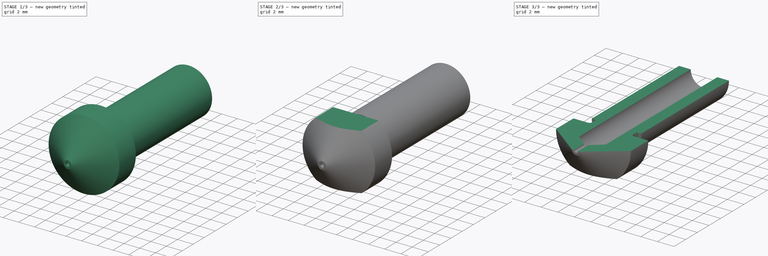
[diagram: build sequence overview — one tinted view per stage of 3, left to right]
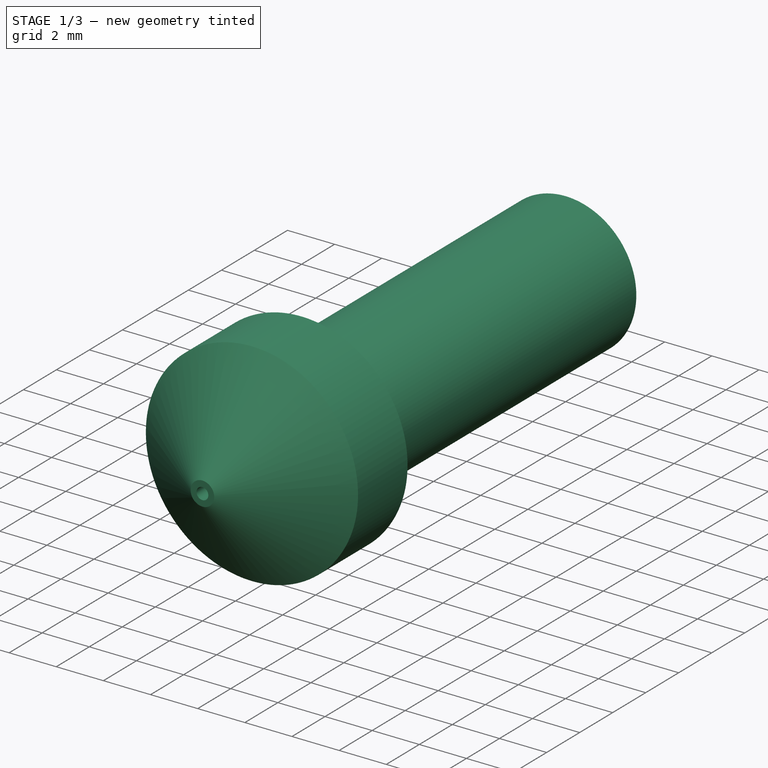
[diagram: stage 1 of 3 — iso view after this stage's code; geometry added in this stage tinted green]
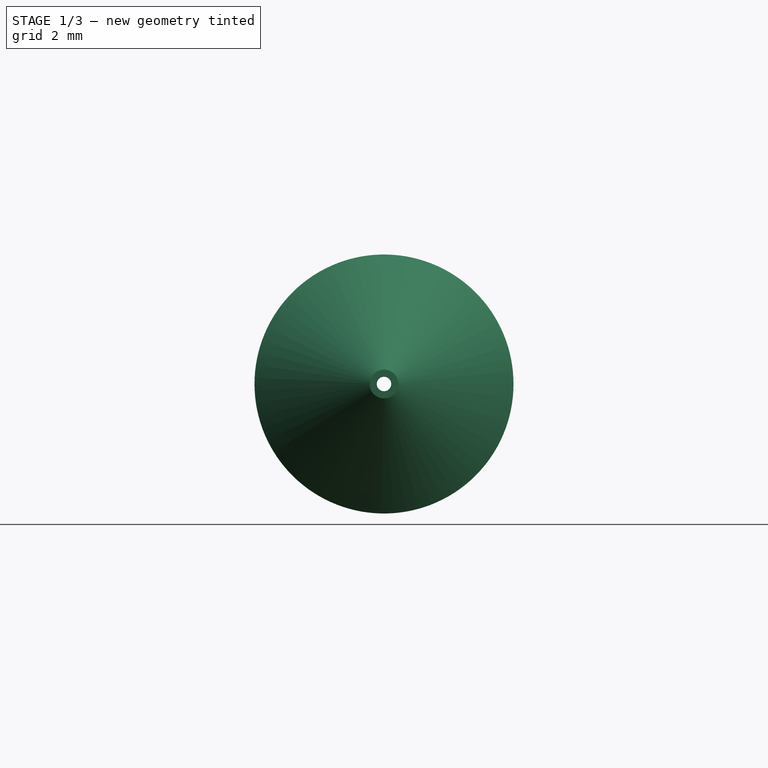
[diagram: stage 1 of 3 — front view after this stage's code; geometry added in this stage tinted green]
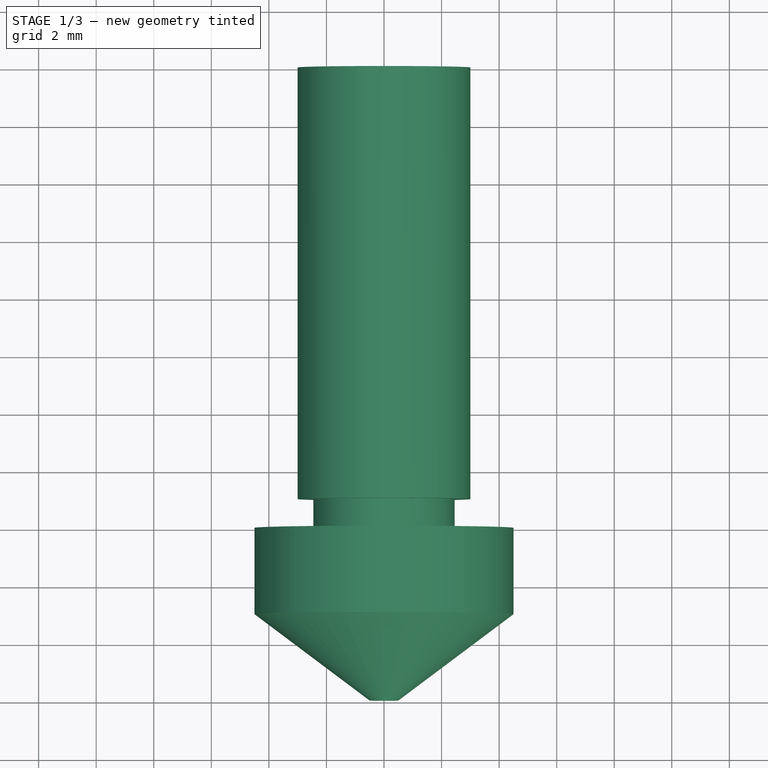
[diagram: stage 1 of 3 — top view after this stage's code; geometry added in this stage tinted green]
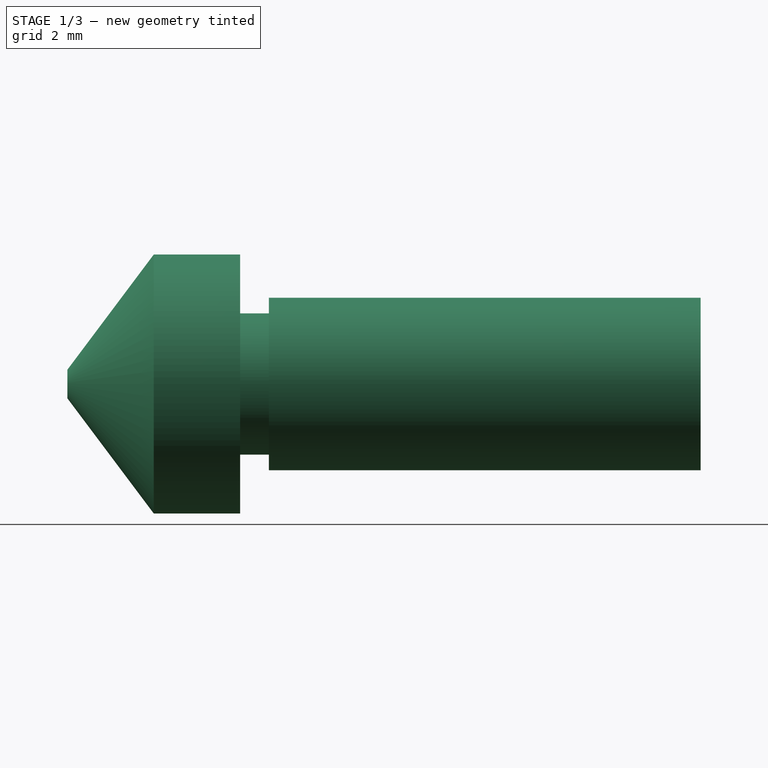
[diagram: stage 1 of 3 — right view after this stage's code; geometry added in this stage tinted green]
FCSTD DOCUMENT  (FreeCAD 0.16R4695 (Git))
Label: extended_hex_nozzle_0.15_drawing
License: All rights reserved
LicenseURL: http://en.wikipedia.org/wiki/All_rights_reserved
objects: Drawing::FeatureView×13, Sketcher::SketchObject×4, Drawing::FeatureViewPart×4, PartDesign::Pocket×3, PartDesign::Revolution×1, PartDesign::Fillet×1, Drawing::FeaturePage×1
note: 13 computed .brp shape members not serialized (recipe doc carries the construction recipe); baked Part::Feature solids carry a one-line shape summary decoded from their .brp

FEATURE [Sketcher::SketchObject] Sketch
  sketch-geometry (13):
    g0: LineSegment StartX=0 StartY=0 StartZ=0 EndX=0.5 EndY=0 EndZ=0
    g1: LineSegment StartX=0.5 StartY=0 StartZ=0 EndX=4.5 EndY=3 EndZ=0
    g2: LineSegment StartX=4.5 StartY=3 StartZ=0 EndX=4.5 EndY=6 EndZ=0
    g3: LineSegment StartX=4.5 StartY=6 StartZ=0 EndX=3 EndY=6 EndZ=0
    g4: LineSegment StartX=3 StartY=7 StartZ=0 EndX=3 EndY=22 EndZ=0
    g5: LineSegment StartX=3 StartY=22 StartZ=0 EndX=1.6 EndY=22 EndZ=0
    g6: LineSegment StartX=1.6 StartY=22 StartZ=0 EndX=1.6 EndY=2.84256 EndZ=0
    g7: LineSegment StartX=1.6 StartY=2.84256 StartZ=0 EndX=0 EndY=1.5 EndZ=0
    g8: LineSegment StartX=0 StartY=1.5 StartZ=0 EndX=0 EndY=0 EndZ=0
    g9: LineSegment StartX=3 StartY=6 StartZ=0 EndX=2.454 EndY=6 EndZ=0
    g10: LineSegment StartX=2.454 StartY=6 StartZ=0 EndX=2.454 EndY=7 EndZ=0
    g11: LineSegment StartX=2.454 StartY=7 StartZ=0 EndX=3 EndY=7 EndZ=0
    g12: LineSegment [constr] StartX=3 StartY=7 StartZ=0 EndX=3 EndY=6 EndZ=0
  constraints (38):
    c: Coincident(g-1,g0)
    c: PointOnObject(g0,g-1)
    c: Coincident(g0,g1)
    c: Coincident(g1,g2)
    c: Vertical(g2)
    c: Coincident(g2,g3)
    c: Horizontal(g3)
    c: Vertical(g4)
    c: Coincident(g4,g5)
    c: Horizontal(g5)
    c: Coincident(g5,g6)
    c: Vertical(g6)
    c: Coincident(g6,g7)
    c: Coincident(g7,g8)
    c: Coincident(g8,g0)
    c: Vertical(g8)
    c: DistanceY(g0,g1) = 3
    c: DistanceY(g2,g1) = -3
    c: DistanceY(g-1,g4) = 22
    c: Angle(g0,g7) = 0.698132
    c: DistanceY(g-1,g7) = 1.5
    c: DistanceX(g0) = 0.5
    c: DistanceX(g-1,g1) = 4.5
    c: DistanceX(g-1,g4) = 3
    c: DistanceX(g-1,g5) = 1.6
    c: Coincident(g9,g10)
    c: Coincident(g10,g11)
    c: Coincident(g11,g12)
    c: Coincident(g12,g9)
    c: Horizontal(g9)
    c: Horizontal(g11)
    c: Vertical(g10)
    c: Vertical(g12)
    c: Coincident(g9,g3)
    c: DistanceY(g11,g3) = -1
    c: DistanceX(g-1,g9) = 2.454
    c: PointOnObject(g4,g11)
    c: Coincident(g11,g4)
FEATURE [PartDesign::Revolution] Revolution
  Angle = 360
  Axis = (0,1,0)
  Base = (0,0,0)
  ReferenceAxis = -> Sketch [V_Axis]
  Reversed = true
  Sketch = -> Sketch
FEATURE [Sketcher::SketchObject] Sketch001
  Placement = pos=(0,0,0) rot=(1,0,0;1.5708rad)
  Support = -> Revolution [Face1]
  sketch-geometry (1):
    g0: Circle CenterX=0 CenterY=0 CenterZ=0 NormalX=0 NormalY=0 NormalZ=1 Radius=0.25
  constraints (2):
    c: Coincident(g0,g-1)
    c: Radius(g0) = 0.25
FEATURE [PartDesign::Pocket] Pocket
  Length = 5
  Sketch = -> Sketch001
  Type = 0
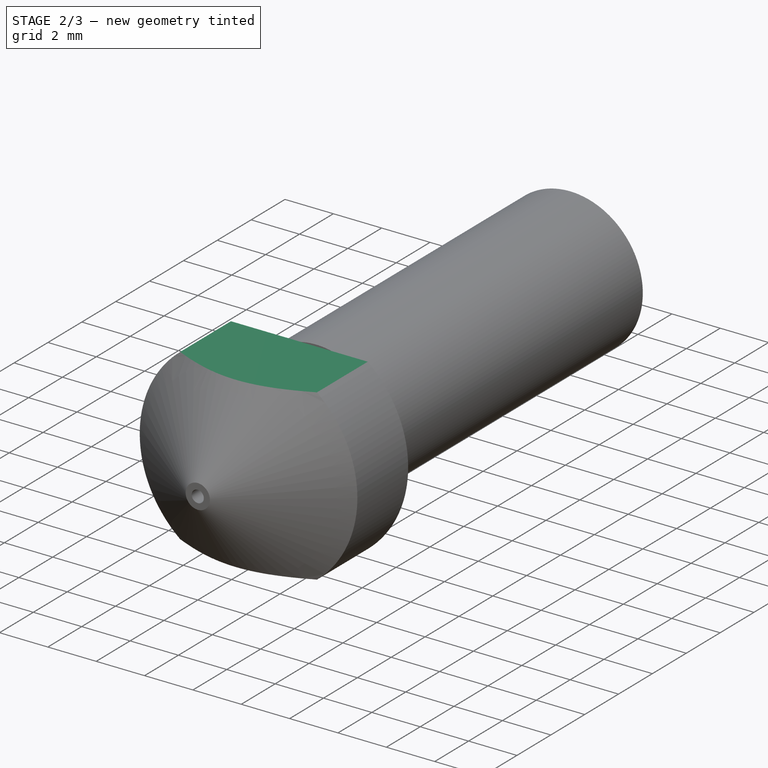
[diagram: stage 2 of 3 — iso view after this stage's code; geometry added in this stage tinted green]
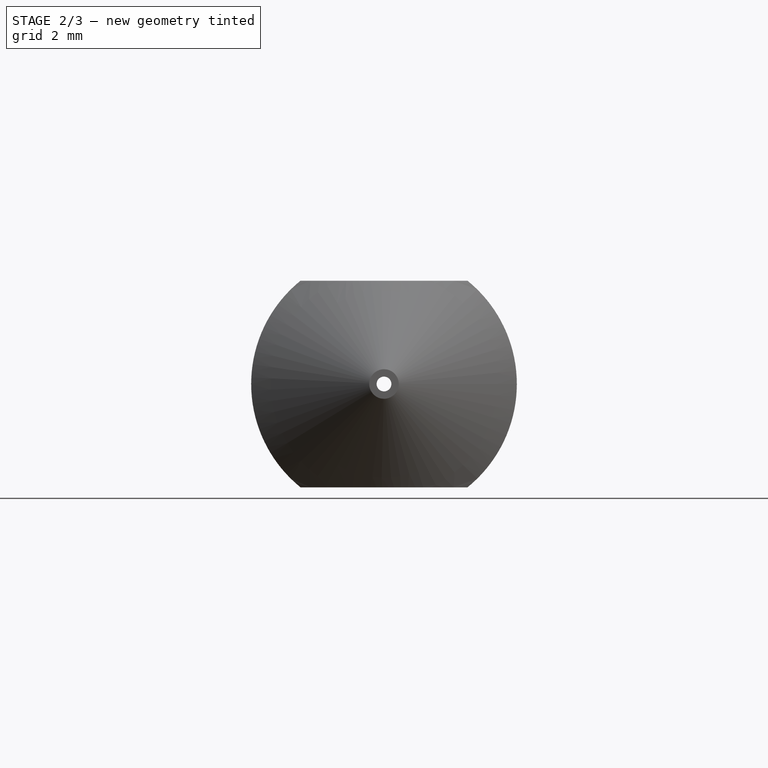
[diagram: stage 2 of 3 — front view after this stage's code; geometry added in this stage tinted green]
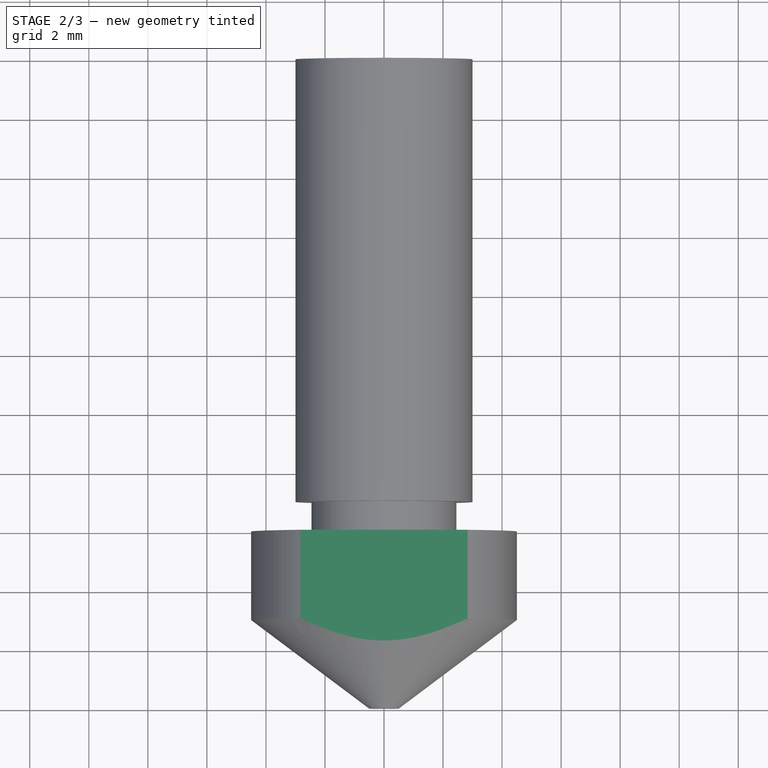
[diagram: stage 2 of 3 — top view after this stage's code; geometry added in this stage tinted green]
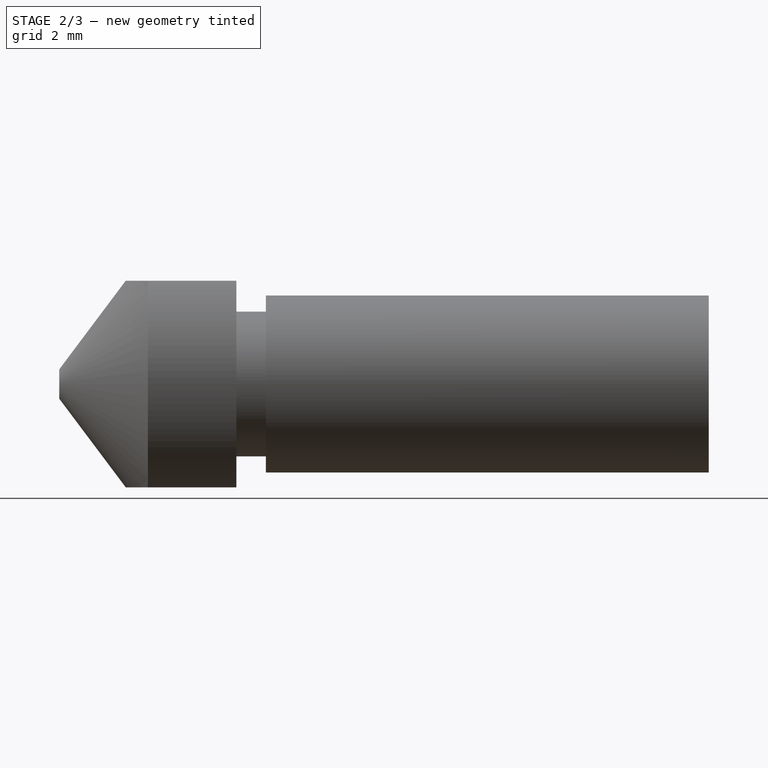
[diagram: stage 2 of 3 — right view after this stage's code; geometry added in this stage tinted green]
FEATURE [Sketcher::SketchObject] Sketch002
  Placement = pos=(0,0,0) rot=(1,0,0;1.5708rad)
  Support = -> Pocket [Face1]
  sketch-geometry (8):
    g0: LineSegment StartX=-5.41894 StartY=5.5961 StartZ=0 EndX=4.58106 EndY=5.5961 EndZ=0
    g1: LineSegment StartX=4.58106 StartY=5.5961 StartZ=0 EndX=4.58106 EndY=3.5 EndZ=0
    g2: LineSegment StartX=4.58106 StartY=3.5 StartZ=0 EndX=-5.41894 EndY=3.5 EndZ=0
    g3: LineSegment StartX=-5.41894 StartY=3.5 StartZ=0 EndX=-5.41894 EndY=5.5961 EndZ=0
    g4: LineSegment StartX=-5.45643 StartY=-5.80451 StartZ=0 EndX=4.54357 EndY=-5.80451 EndZ=0
    g5: LineSegment StartX=4.54357 StartY=-5.80451 StartZ=0 EndX=4.54357 EndY=-3.5 EndZ=0
    g6: LineSegment StartX=4.54357 StartY=-3.5 StartZ=0 EndX=-5.45643 EndY=-3.5 EndZ=0
    g7: LineSegment StartX=-5.45643 StartY=-3.5 StartZ=0 EndX=-5.45643 EndY=-5.80451 EndZ=0
  constraints (24):
    c: Coincident(g0,g1)
    c: Coincident(g1,g2)
    c: Coincident(g2,g3)
    c: Coincident(g3,g0)
    c: Horizontal(g0)
    c: Horizontal(g2)
    c: Vertical(g1)
    c: Vertical(g3)
    c: Coincident(g4,g5)
    c: Coincident(g5,g6)
    c: Coincident(g6,g7)
    c: Coincident(g7,g4)
    c: Horizontal(g4)
    c: Horizontal(g6)
    c: Vertical(g5)
    c: Vertical(g7)
    c: DistanceY(g6,g2) = 7
    c: DistanceY(g-1,g2) = 3.5
    c: DistanceX(g4) = 4.54357
    c: DistanceY(g4) = -5.80451
    c: DistanceX(g0) = -5.41894
    c: DistanceY(g0) = 5.5961
    c: Equal(g0,g4)
    c: DistanceX(g0) = 10
FEATURE [PartDesign::Pocket] Pocket001
  Length = 5
  Sketch = -> Sketch002
  Type = 1
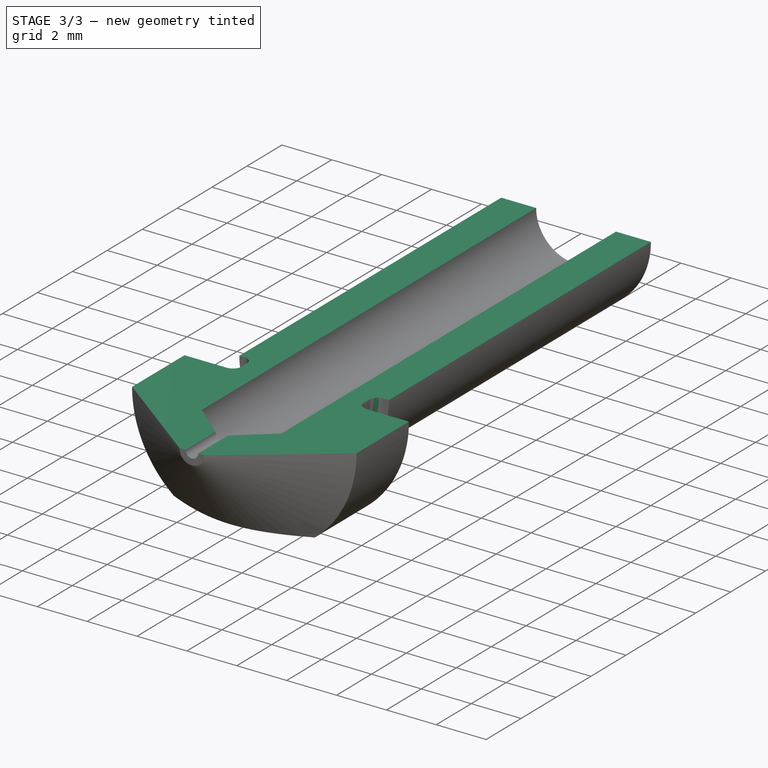
[diagram: stage 3 of 3 — iso view after this stage's code; geometry added in this stage tinted green]
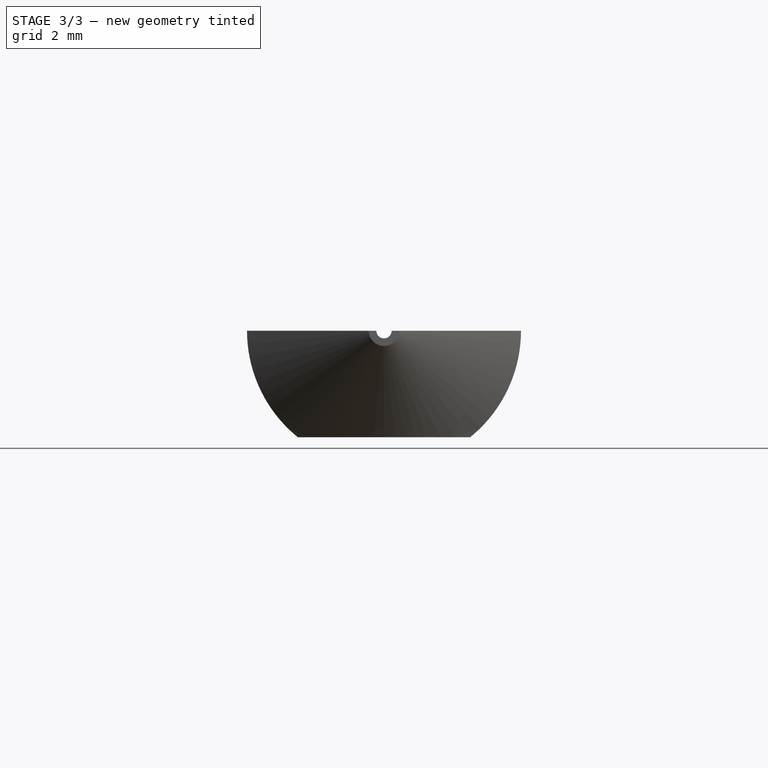
[diagram: stage 3 of 3 — front view after this stage's code; geometry added in this stage tinted green]
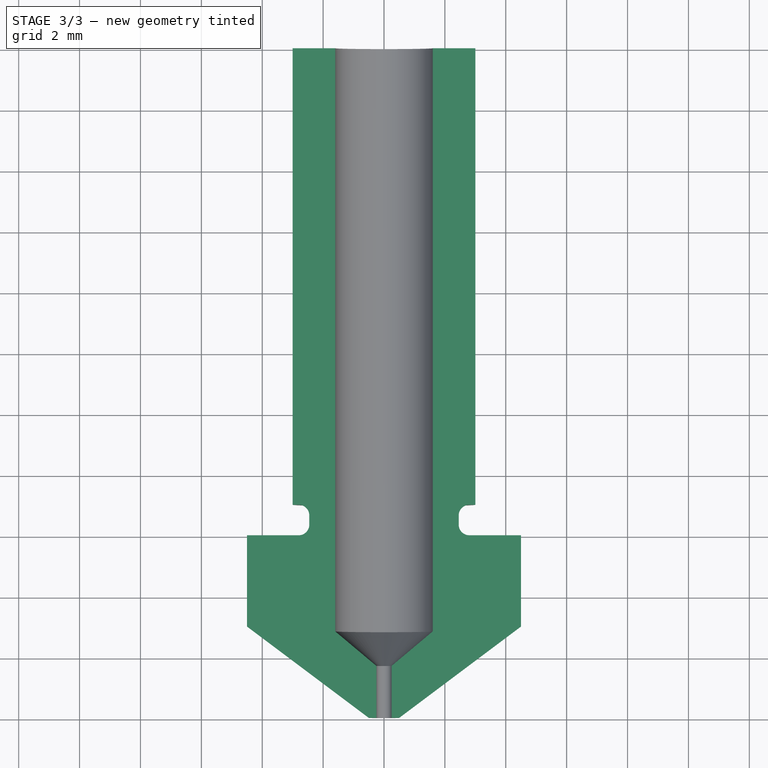
[diagram: stage 3 of 3 — top view after this stage's code; geometry added in this stage tinted green]
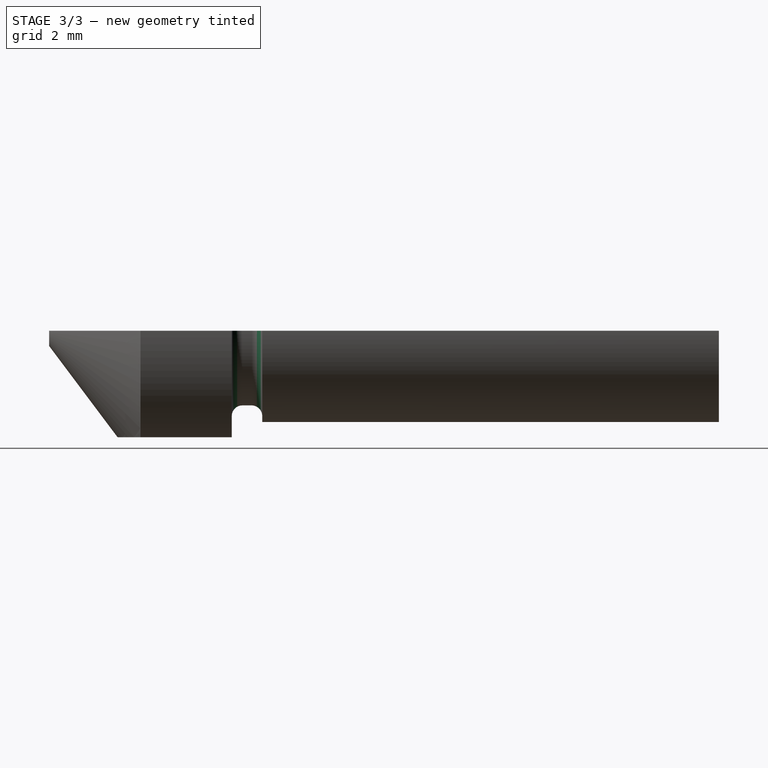
[diagram: stage 3 of 3 — right view after this stage's code; geometry added in this stage tinted green]
FEATURE [PartDesign::Fillet] Fillet
  Base = -> Pocket001 [Edge28,Edge26]
  Radius = 0.35
FEATURE [Sketcher::SketchObject] Sketch003
  Placement = pos=(0,22,0) rot=(0,0.707107,0.707107;3.14159rad)
  Support = -> Fillet [Face16]
  sketch-geometry (8):
    g0: LineSegment [constr] StartX=0 StartY=10 StartZ=0 EndX=10 EndY=10 EndZ=0
    g1: LineSegment [constr] StartX=10 StartY=10 StartZ=0 EndX=10 EndY=-10 EndZ=0
    g2: LineSegment [constr] StartX=10 StartY=-10 StartZ=0 EndX=0 EndY=-10 EndZ=0
    g3: LineSegment [constr] StartX=0 StartY=-10 StartZ=0 EndX=0 EndY=10 EndZ=0
    g4: LineSegment StartX=-10 StartY=0 StartZ=0 EndX=10 EndY=0 EndZ=0
    g5: LineSegment StartX=10 StartY=0 StartZ=0 EndX=10 EndY=10 EndZ=0
    g6: LineSegment StartX=10 StartY=10 StartZ=0 EndX=-10 EndY=10 EndZ=0
    g7: LineSegment StartX=-10 StartY=10 StartZ=0 EndX=-10 EndY=0 EndZ=0
  constraints (23):
    c: Coincident(g0,g1)
    c: Coincident(g1,g2)
    c: Coincident(g2,g3)
    c: Coincident(g3,g0)
    c: Horizontal(g0)
    c: Horizontal(g2)
    c: Vertical(g1)
    c: Vertical(g3)
    c: PointOnObject(g0,g-2)
    c: DistanceY(g-1,g0) = 10
    c: DistanceX(g0) = 10
    c: DistanceY(g1) = -20
    c: Coincident(g4,g5)
    c: Coincident(g5,g6)
    c: Coincident(g6,g7)
    c: Coincident(g7,g4)
    c: Horizontal(g4)
    c: Horizontal(g6)
    c: Vertical(g5)
    c: Vertical(g7)
    c: Coincident(g5,g0)
    c: PointOnObject(g4,g-1)
    c: DistanceX(g-1,g4) = -10
FEATURE [PartDesign::Pocket] Pocket002
  Length = 6
  Sketch = -> Sketch003
  Type = 1
FEATURE [Drawing::FeatureViewPart] View
  Direction = (0,0,1)
  HiddenWidth = 0.15
  LineWidth = 0.35
  Rotation = 0
  Scale = 4
  ShowHiddenLines = false
  ShowSmoothLines = false
  Source = -> Pocket002
  Tolerance = 0.05
  ViewResult = <blob: 3425 chars omitted>
  Visible = true
  X = 200
  Y = 120
FEATURE [Drawing::FeatureViewPart] Ortho  label="Ortho_0_0"
  Direction = (0,0,1)
  HiddenWidth = 0.15
  LineWidth = 0.35
  Rotation = 0
  Scale = 4
  ShowHiddenLines = false
  ShowSmoothLines = false
  Source = -> Fillet
  Tolerance = 0.05
  ViewResult = <blob: 2878 chars omitted>
  Visible = true
  X = 50
  Y = 119
FEATURE [Drawing::FeatureViewPart] Ortho001  label="Ortho_0_-1"
  Direction = (0,-1,0)
  HiddenWidth = 0.15
  LineWidth = 0.35
  Rotation = 90
  Scale = 4
  ShowHiddenLines = false
  ShowSmoothLines = false
  Source = -> Fillet
  Tolerance = 0.05
  ViewResult = <g id="Ortho_0_-1"\n   transform="rotate(90,50,150) translate(50,150) scale(4,4)"\n  >\n<g   stroke="rgb(0, 0, 0)"\n   stroke-width="0.0875"\n   stroke-linecap="butt"\n   stroke-linejoin="miter"\n   fill="none"\n   transform="scale(1,-1)"\n  >\n<path d="M3.5 2.82843 A4.5 4.5 0 0 1 1.10218e-15 4.5" /><path d="M3.5,2.82843 L3.5,2.36825  L3.5,1.93449  L3.5,1.52232  L3.5,1.12712  L3.5,0.744501  L3.5,0.370186  L3.5,-4.85723e-16  L3.5,-0.370186  L3.5,-0.744501  L3.5,-1.12712  L3.5,-1.52232  L3.5,-1.93449  L3.5,-2.36825  L3.5,-2.82843 " /><path d="M-3.5 -2.82843 A4.5 4.5 0 0 1 3.5 -2.82843" /><path d="M-3.5,2.82843 L-3.5,2.36825  L-3.5,1.93449  L-3.5,1.52232  L-3.5,1.12712  L-3.5,0.744501  L-3.5,0.370186  L-3.5,9.71445e-17  L-3.5,-0.370186  L-3.5,-0.744501  L-3.5,-1.12712  L-3.5,-1.52232  L-3.5,-1.93449  L-3.5,-2.36825  L-3.5,-2.82843 " /><path d="M0 4.5 A4.5 4.5 0 0 1 -3.5 2.82843" /><circle cx ="0" cy ="0" r ="0.5" /><circle cx ="0" cy ="0" r ="0.25" /></g>\n</g>
  Visible = true
  X = 50
  Y = 150
FEATURE [Drawing::FeatureViewPart] Ortho002  label="Ortho_1_0"
  Direction = (1,0,0)
  HiddenWidth = 0.15
  LineWidth = 0.35
  Rotation = 180
  Scale = 4
  ShowHiddenLines = false
  ShowSmoothLines = false
  Source = -> Fillet
  Tolerance = 0.05
  ViewResult = <blob: 4243 chars omitted>
  Visible = true
  X = 125
  Y = 119
FEATURE [Drawing::FeatureView] dim001
  Rotation = 0
  ViewResult = <g   >\n <circle cx ="50.000000" cy ="150.000000" r="0.500000" stroke="none" fill="rgb(0,0,255)" /> \n<line x1="41.844133" y1="172.397830" x2="50.684316" y2="148.120715" style="stroke:rgb(0,0,255);stroke-width:0.30" />\n<polygon points="49.315684,151.879285 47.349567,154.356054 47.947052,155.637854 49.228852,155.040370" style="fill:rgb(0,0,255);stroke:rgb(0,0,255);stroke-width:0" />\n<polygon points="50.684316,148.120715 52.650433,145.643946 52.052948,144.362146 50.771148,144.959630" style="fill:rgb(0,0,255);stroke:rgb(0,0,255);stroke-width:0" />\n<line x1="41.844133" y1="172.397830" x2="29.569854" y2="172.397830" style="stroke:rgb(0,0,255);stroke-width:0.30" />\n<text x="29.290893" y="170.724064" font-family="Verdana" font-size="3.6" fill="rgb(255,0,0)" text-anchor="inherit"  >Ø1.00</text>\n<!--4.0-->\n<!--Ø%3.3f-->\n</g> 
  Visible = true
  X = 0
  Y = 0
FEATURE [Drawing::FeatureView] dim002
  Rotation = 0
  ViewResult = <g   >\n<line x1="38.527000" y1="136.000000" x2="26.896089" y2="136.000000" style="stroke:rgb(0,0,255);stroke-width:0.30" />\n<line x1="40.262040" y1="164.000000" x2="26.896089" y2="164.000000" style="stroke:rgb(0,0,255);stroke-width:0.30" />\n<line x1="27.896089" y1="136.000000" x2="27.896089" y2="164.000000" style="stroke:rgb(0,0,255);stroke-width:0.30" />\n<polygon points="27.896089,136.000000 26.896089,139.000000 27.896089,140.000000 28.896089,139.000000" style="fill:rgb(0,0,255);stroke:rgb(0,0,255);stroke-width:0" /><polygon points="27.896089,164.000000 28.896089,161.000000 27.896089,160.000000 26.896089,161.000000" style="fill:rgb(0,0,255);stroke:rgb(0,0,255);stroke-width:0" />\n<text x="25.943363" y="155.102254" font-family="Verdana" font-size="3.6" fill="rgb(255,0,0)" text-anchor="inherit" transform="rotate(-90.000000 25.943363,155.102254)" >7.00</text>\n</g> 
  Visible = true
  X = 0
  Y = 0
FEATURE [Drawing::FeatureView] dim003
  Rotation = 0
  ViewResult = <g   >\n<line x1="46.050144" y1="119.000000" x2="22.711676" y2="119.000000" style="stroke:rgb(0,0,255);stroke-width:0.30" />\n<line x1="30.036440" y1="107.000000" x2="22.711676" y2="107.000000" style="stroke:rgb(0,0,255);stroke-width:0.30" />\n<line x1="23.711676" y1="119.000000" x2="23.711676" y2="107.000000" style="stroke:rgb(0,0,255);stroke-width:0.30" />\n<polygon points="23.711676,119.000000 24.711676,116.000000 23.711676,115.000000 22.711676,116.000000" style="fill:rgb(0,0,255);stroke:rgb(0,0,255);stroke-width:0" /><polygon points="23.711676,107.000000 22.711676,110.000000 23.711676,111.000000 24.711676,110.000000" style="fill:rgb(0,0,255);stroke:rgb(0,0,255);stroke-width:0" />\n<text x="20.364145" y="115.489808" font-family="Verdana" font-size="3.6" fill="rgb(255,0,0)" text-anchor="inherit" transform="rotate(-90.000000 20.364145,115.489808)" >3.00</text>\n</g> 
  Visible = true
  X = 0
  Y = 0
FEATURE [Drawing::FeatureView] dim004
  Rotation = 0
  ViewResult = <g   >\n<line x1="30.036440" y1="107.000000" x2="22.711676" y2="107.000000" style="stroke:rgb(0,0,255);stroke-width:0.30" />\n<line x1="30.036440" y1="95.000000" x2="22.711676" y2="95.000000" style="stroke:rgb(0,0,255);stroke-width:0.30" />\n<line x1="23.711676" y1="107.000000" x2="23.711676" y2="95.000000" style="stroke:rgb(0,0,255);stroke-width:0.30" />\n<polygon points="23.711676,107.000000 24.711676,104.000000 23.711676,103.000000 22.711676,104.000000" style="fill:rgb(0,0,255);stroke:rgb(0,0,255);stroke-width:0" /><polygon points="23.711676,95.000000 22.711676,98.000000 23.711676,99.000000 24.711676,98.000000" style="fill:rgb(0,0,255);stroke:rgb(0,0,255);stroke-width:0" />\n<text x="19.806223" y="104.889294" font-family="Verdana" font-size="3.6" fill="rgb(255,0,0)" text-anchor="inherit" transform="rotate(-90.000000 19.806223,104.889294)" >3.00</text>\n</g> 
  Visible = true
  X = 0
  Y = 0
FEATURE [Drawing::FeatureView] dim005
  Rotation = 0
  ViewResult = <g   >\n<line x1="41.600000" y1="95.000000" x2="29.127776" y2="95.000000" style="stroke:rgb(0,0,255);stroke-width:0.30" />\n<line x1="40.518120" y1="91.000000" x2="29.127776" y2="91.000000" style="stroke:rgb(0,0,255);stroke-width:0.30" />\n<line x1="30.127776" y1="95.000000" x2="30.127776" y2="91.000000" style="stroke:rgb(0,0,255);stroke-width:0.30" />\n<polygon points="30.127776,95.000000 29.127776,98.000000 30.127776,99.000000 31.127776,98.000000" style="fill:rgb(0,0,255);stroke:rgb(0,0,255);stroke-width:0" /><polygon points="30.127776,91.000000 31.127776,88.000000 30.127776,87.000000 29.127776,88.000000" style="fill:rgb(0,0,255);stroke:rgb(0,0,255);stroke-width:0" />\n<text x="28.175050" y="94.009820" font-family="Verdana" font-size="3.6" fill="rgb(255,0,0)" text-anchor="inherit" transform="rotate(-90.000000 28.175050,94.009820)" >1.00</text>\n</g> 
  Visible = true
  X = 0
  Y = 0
FEATURE [Drawing::FeatureView] dim006
  Rotation = 0
  ViewResult = <g   >\n<line x1="31.296800" y1="95.000000" x2="22.711676" y2="95.000000" style="stroke:rgb(0,0,255);stroke-width:0.30" />\n<line x1="38.618040" y1="31.000000" x2="22.711676" y2="31.000000" style="stroke:rgb(0,0,255);stroke-width:0.30" />\n<line x1="23.711676" y1="95.000000" x2="23.711676" y2="31.000000" style="stroke:rgb(0,0,255);stroke-width:0.30" />\n<polygon points="23.711676,95.000000 24.711676,92.000000 23.711676,91.000000 22.711676,92.000000" style="fill:rgb(0,0,255);stroke:rgb(0,0,255);stroke-width:0" /><polygon points="23.711676,31.000000 22.711676,34.000000 23.711676,35.000000 24.711676,34.000000" style="fill:rgb(0,0,255);stroke:rgb(0,0,255);stroke-width:0" />\n<text x="21.758949" y="72.529831" font-family="Verdana" font-size="3.6" fill="rgb(255,0,0)" text-anchor="inherit" transform="rotate(-90.000000 21.758949,72.529831)" >16.00</text>\n</g> 
  Visible = true
  X = 0
  Y = 0
FEATURE [Drawing::FeatureView] dim007
  Rotation = 0
  ViewResult = <g   >\n <line x1="40.184000" y1="90.400000" x2="40.184000" y2="24.106480" style="stroke:rgb(0,0,255);stroke-width:0.300000" />\n<line x1="59.816000" y1="90.400000" x2="59.816000" y2="24.106480" style="stroke:rgb(0,0,255);stroke-width:0.300000" />\n<line x1="40.184000" y1="25.106480" x2="59.816000" y2="25.106480" style="stroke:rgb(0,0,255);stroke-width:0.300000" />\n<polygon points="40.184000,25.106480 43.184000,26.106480 44.184000,25.106480 43.184000,24.106480" style="fill:rgb(0,0,255);stroke:rgb(0,0,255);stroke-width:0" />\n<polygon points="59.816000,25.106480 56.816000,24.106480 55.816000,25.106480 56.816000,26.106480" style="fill:rgb(0,0,255);stroke:rgb(0,0,255);stroke-width:0" />\n<text x="45.470625" y="23.711676" font-family="Verdana" font-size="3.6" fill="rgb(255,0,0)" text-anchor="inherit"  >4.90</text>\n</g> 
  Visible = true
  X = 0
  Y = 0
FEATURE [Drawing::FeatureView] dimLine001
  Rotation = 0
  ViewResult = <g   >\n<line x1="71.135027" y1="41.286212" x2="62.000000" y2="61.000000" style="stroke:rgb(0,0,255);stroke-width:0.30" />\n<polygon points="62.000000,61.000000 64.168633,58.698472 63.681748,57.370713 62.353990,57.857598" style="fill:rgb(0,0,255);stroke:rgb(0,0,255);stroke-width:0" />\n<line x1="71.135027" y1="41.286212" x2="84.525149" y2="41.286212" style="stroke:rgb(0,0,255);stroke-width:0.30" />\n</g> 
  Visible = true
  X = 0
  Y = 0
FEATURE [Drawing::FeatureView] dimText001
  Rotation = 0
  ViewResult = <g   >\n<text x="69.740222" y="39.612446" font-family="Verdana" font-size="3.6" fill="rgb(255,0,0)" text-anchor="inherit"  >M6 x 1.0</text>\n</g> 
  Visible = true
  X = 0
  Y = 0
FEATURE [Drawing::FeatureView] dim008
  Rotation = 0
  ViewResult = <g   >\n <line x1="204.000000" y1="120.000000" x2="239.560115" y2="120.000000" style="stroke:rgb(0,0,255);stroke-width:0.300000" />\n<line x1="207.932086" y1="107.344181" x2="228.631845" y2="89.974937" style="stroke:rgb(0,0,255);stroke-width:0.300000" />\n<path d = "M 238.560115 120.000000 A 45.710574 45.710574 0 0 0 227.865802 90.617726" style="stroke:rgb(0,0,255);stroke-width:0.30;fill:none" />\n<polygon points="238.560115,120.000000 239.560115,117.000000 238.560115,116.000000 237.560115,117.000000" style="fill:rgb(0,0,255);stroke:rgb(0,0,255);stroke-width:0" />\n<polygon points="227.865802,90.617726 229.028127,93.558644 230.436960,93.681898 230.560213,92.273065" style="fill:rgb(0,0,255);stroke:rgb(0,0,255);stroke-width:0" />\n<text x="238.916175" y="103.984242" font-family="Verdana" font-size="3.6" fill="rgb(255,0,0)" text-anchor="-0.334593166894"  >2X R0.3-0.4</text>\n <!--40.0001369284-->\n <!--%3.1f°-->\n</g> 
  Visible = true
  X = 0
  Y = 0
FEATURE [Drawing::FeatureView] dim009
  Rotation = 0
  ViewResult = <g   >\n<line x1="198.974928" y1="113.160920" x2="177.258700" y2="113.160920" style="stroke:rgb(0,0,255);stroke-width:0.30" />\n<line x1="198.867768" y1="120.000000" x2="177.258700" y2="120.000000" style="stroke:rgb(0,0,255);stroke-width:0.30" />\n<line x1="178.258700" y1="113.160920" x2="178.258700" y2="120.000000" style="stroke:rgb(0,0,255);stroke-width:0.30" />\n<polygon points="178.258700,113.160920 179.258700,110.160920 178.258700,109.160920 177.258700,110.160920" style="fill:rgb(0,0,255);stroke:rgb(0,0,255);stroke-width:0" /><polygon points="178.258700,120.000000 177.258700,123.000000 178.258700,124.000000 179.258700,123.000000" style="fill:rgb(0,0,255);stroke:rgb(0,0,255);stroke-width:0" />\n<text x="174.438871" y="121.215916" font-family="Verdana" font-size="3.6" fill="rgb(255,0,0)" text-anchor="inherit" transform="rotate(-90.000000 174.438871,121.215916)" >1.50</text>\n</g> 
  Visible = true
  X = 0
  Y = 0
FEATURE [Drawing::FeatureView] dim010
  Rotation = 0
  ViewResult = <g   >\n <line x1="193.600000" y1="30.000000" x2="193.600000" y2="26.587656" style="stroke:rgb(0,0,255);stroke-width:0.300000" />\n<line x1="206.400000" y1="30.000000" x2="206.400000" y2="26.587656" style="stroke:rgb(0,0,255);stroke-width:0.300000" />\n<line x1="193.600000" y1="27.587656" x2="206.400000" y2="27.587656" style="stroke:rgb(0,0,255);stroke-width:0.300000" />\n<polygon points="193.600000,27.587656 196.600000,28.587656 197.600000,27.587656 196.600000,26.587656" style="fill:rgb(0,0,255);stroke:rgb(0,0,255);stroke-width:0" />\n<polygon points="206.400000,27.587656 203.400000,26.587656 202.400000,27.587656 203.400000,28.587656" style="fill:rgb(0,0,255);stroke:rgb(0,0,255);stroke-width:0" />\n<text x="195.272623" y="25.106480" font-family="Verdana" font-size="3.6" fill="rgb(255,0,0)" text-anchor="inherit" transform="rotate(360.000000 195.272623,25.106480)" >3.20</text>\n</g> 
  Visible = true
  X = 0
  Y = 0
FEATURE [Drawing::FeatureView] dim011
  Rotation = 0
  ViewResult = <g   >\n <line x1="199.000000" y1="122.000000" x2="199.000000" y2="133.511804" style="stroke:rgb(0,0,255);stroke-width:0.300000" />\n<line x1="201.000000" y1="122.000000" x2="201.000000" y2="133.511804" style="stroke:rgb(0,0,255);stroke-width:0.300000" />\n<line x1="199.000000" y1="132.511804" x2="201.000000" y2="132.511804" style="stroke:rgb(0,0,255);stroke-width:0.300000" />\n<polygon points="199.000000,132.511804 196.000000,131.511804 195.000000,132.511804 196.000000,133.511804" style="fill:rgb(0,0,255);stroke:rgb(0,0,255);stroke-width:0" />\n<polygon points="201.000000,132.511804 204.000000,133.511804 205.000000,132.511804 204.000000,131.511804" style="fill:rgb(0,0,255);stroke:rgb(0,0,255);stroke-width:0" />\n<text x="195.292354" y="137.668777" font-family="Verdana" font-size="3.6" fill="rgb(255,0,0)" text-anchor="inherit" transform="rotate(360.000000 195.292354,137.668777)" >0.50</text>\n</g> 
  Visible = true
  X = 0
  Y = 0
FEATURE [Drawing::FeaturePage] Page
  EditableTexts = Designed by Name | Date | Scale | Weight | Title | Subtitle | Drawing number | Sheet
  Group = -> [View,Ortho,Ortho001,Ortho002,dim001,dim002,dim003,dim004,dim005,dim006,dim007,dimLine001,dimText001,dim008,dim009,dim010,dim011]
  Template = <path>
note: 1 file-system path scrubbed to <path> (originals preserved in the JSON sidecar)
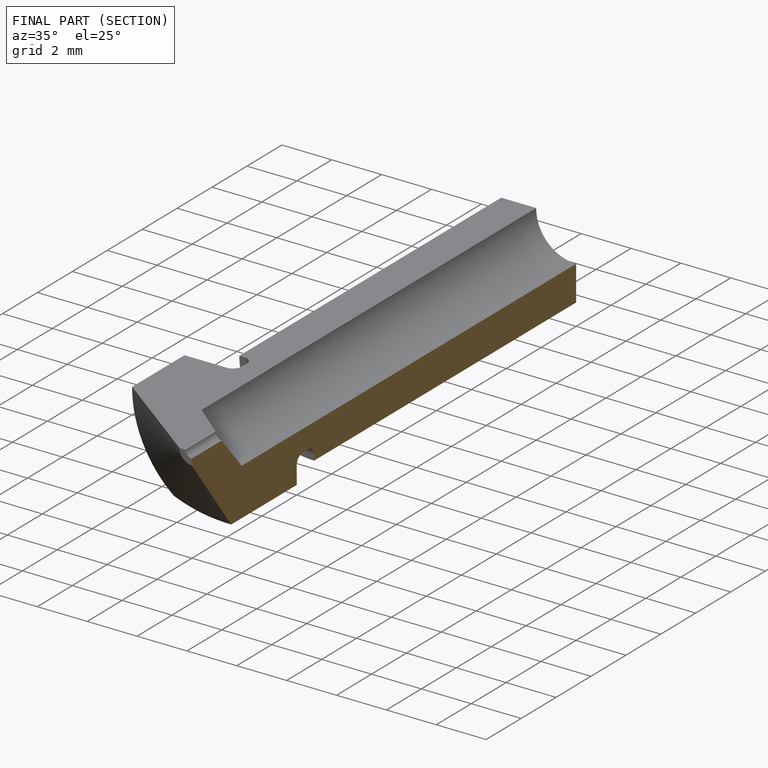
[diagram: finished part — half-section view (interior)]
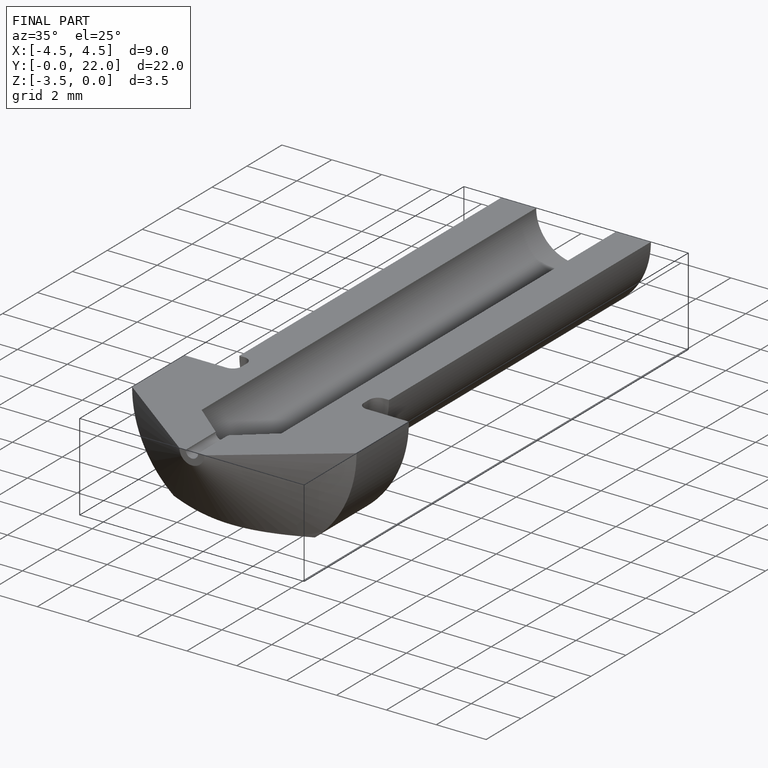
[diagram: finished part — iso view with bounding-box wireframe]
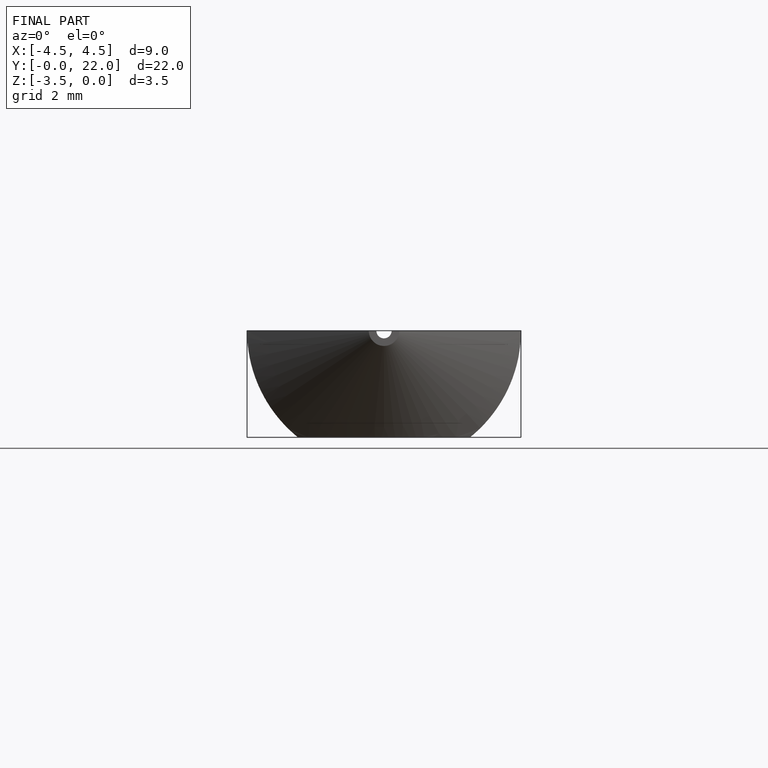
[diagram: finished part — front view with bounding-box wireframe]
